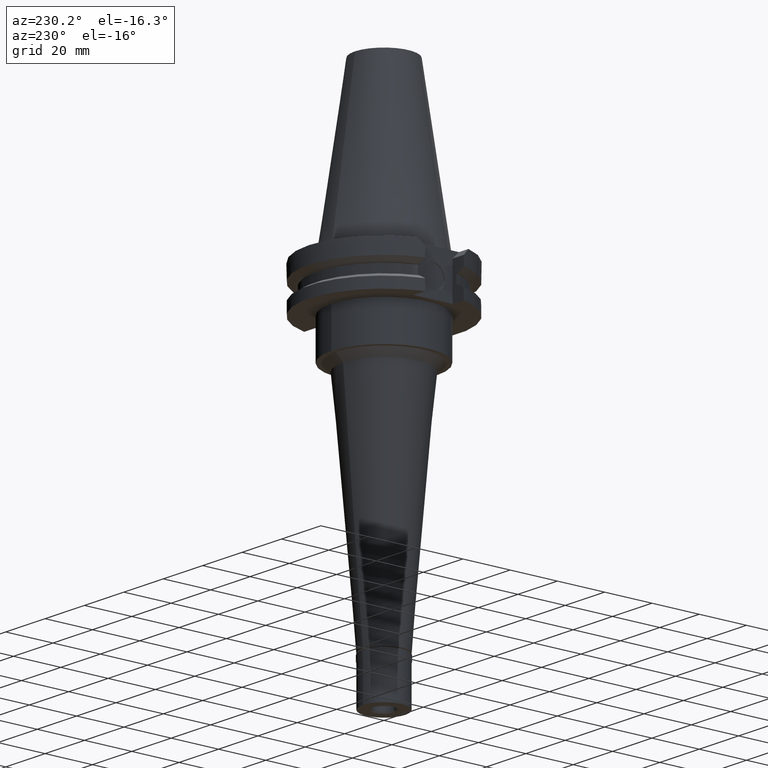
[diagram: clean part render]
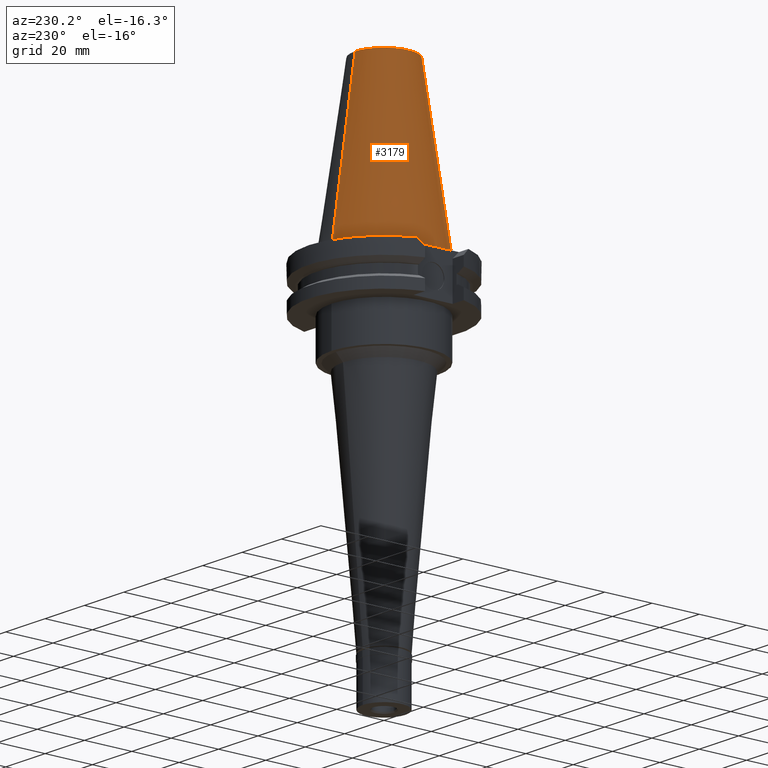
[diagram: same view with one face highlighted and labeled with its STEP entity id]
A machine part, auxiliary view. The second image highlights one B-rep face of the part: STEP entity #3179.
In plain terms, the highlighted conical surface has half-angle 8.297 deg.
Its self-contained STEP definition (entity closure, byte-faithful):
#54 = DIRECTION ( 'NONE',  ( 0.0000000000000000000, 0.0000000000000000000, -1.000000000000000000 ) ) ;
#65 = AXIS2_PLACEMENT_3D ( 'NONE', #2604, #2341, #1861 ) ;
#68 = CIRCLE ( 'NONE', #685, 22.22500000000000142 ) ;
#174 = AXIS2_PLACEMENT_3D ( 'NONE', #1389, #1186, #2151 ) ;
#338 = EDGE_CURVE ( 'NONE', #1634, #1006, #3075, .T. ) ;
#556 = CARTESIAN_POINT ( 'NONE',  ( 0.0000000000000000000, 1.642557519355999895E-14, -3.126388037344000570E-13 ) ) ;
#560 = CARTESIAN_POINT ( 'NONE',  ( 0.0000000000000000000, 22.22500000000000142, -2.131628207279999655E-13 ) ) ;
#584 = DIRECTION ( 'NONE',  ( 0.0000000000000000000, 0.1443069799456937474, -0.9895329683941577192 ) ) ;
#685 = AXIS2_PLACEMENT_3D ( 'NONE', #556, #54, #1089 ) ;
#708 = ORIENTED_EDGE ( 'NONE', *, *, #338, .T. ) ;
#868 = LINE ( 'NONE', #2373, #2687 ) ;
#907 = FACE_OUTER_BOUND ( 'NONE', #2981, .T. ) ;
#1006 = VERTEX_POINT ( 'NONE', #560 ) ;
#1073 = CARTESIAN_POINT ( 'NONE',  ( 0.0000000000000000000, -22.22500000000000142, -2.131628207279999655E-13 ) ) ;
#1089 = DIRECTION ( 'NONE',  ( 0.0000000000000000000, -1.000000000000000000, 0.0000000000000000000 ) ) ;
#1186 = DIRECTION ( 'NONE',  ( 0.0000000000000000000, 0.0000000000000000000, -1.000000000000000000 ) ) ;
#1190 = ORIENTED_EDGE ( 'NONE', *, *, #2953, .F. ) ;
#1389 = CARTESIAN_POINT ( 'NONE',  ( 0.0000000000000000000, 1.642557519355999895E-14, 34.12500000000000000 ) ) ;
#1471 = VECTOR ( 'NONE', #584, 1000.000000000000114 ) ;
#1565 = CONICAL_SURFACE ( 'NONE', #174, 17.24843444035000317, 0.1448125860318199565 ) ;
#1613 = CIRCLE ( 'NONE', #65, 12.27186888070000137 ) ;
#1634 = VERTEX_POINT ( 'NONE', #2441 ) ;
#1861 = DIRECTION ( 'NONE',  ( 0.0000000000000000000, -1.000000000000000000, 0.0000000000000000000 ) ) ;
#1902 = DIRECTION ( 'NONE',  ( 0.0000000000000000000, -0.1443069799456937474, -0.9895329683941577192 ) ) ;
#1927 = ORIENTED_EDGE ( 'NONE', *, *, #2633, .T. ) ;
#1934 = EDGE_CURVE ( 'NONE', #3197, #2881, #868, .T. ) ;
#2151 = DIRECTION ( 'NONE',  ( 0.0000000000000000000, -1.000000000000000000, 0.0000000000000000000 ) ) ;
#2303 = CARTESIAN_POINT ( 'NONE',  ( 0.0000000000000000000, 12.27186888070000137, 68.25000000000000000 ) ) ;
#2341 = DIRECTION ( 'NONE',  ( 0.0000000000000000000, 0.0000000000000000000, -1.000000000000000000 ) ) ;
#2373 = CARTESIAN_POINT ( 'NONE',  ( 0.0000000000000000000, -12.27186888070000137, 68.25000000000000000 ) ) ;
#2423 = CARTESIAN_POINT ( 'NONE',  ( 0.0000000000000000000, -12.27186888070000137, 68.25000000000000000 ) ) ;
#2441 = CARTESIAN_POINT ( 'NONE',  ( 0.0000000000000000000, 12.27186888070000137, 68.25000000000000000 ) ) ;
#2581 = ORIENTED_EDGE ( 'NONE', *, *, #1934, .F. ) ;
#2604 = CARTESIAN_POINT ( 'NONE',  ( 0.0000000000000000000, 1.642557519355999895E-14, 68.25000000000000000 ) ) ;
#2633 = EDGE_CURVE ( 'NONE', #3197, #1634, #1613, .T. ) ;
#2687 = VECTOR ( 'NONE', #1902, 1000.000000000000114 ) ;
#2881 = VERTEX_POINT ( 'NONE', #1073 ) ;
#2953 = EDGE_CURVE ( 'NONE', #2881, #1006, #68, .T. ) ;
#2981 = EDGE_LOOP ( 'NONE', ( #1190, #2581, #1927, #708 ) ) ;
#3075 = LINE ( 'NONE', #2303, #1471 ) ;
#3179 = ADVANCED_FACE ( 'NONE', ( #907 ), #1565, .T. ) ;
#3197 = VERTEX_POINT ( 'NONE', #2423 ) ;